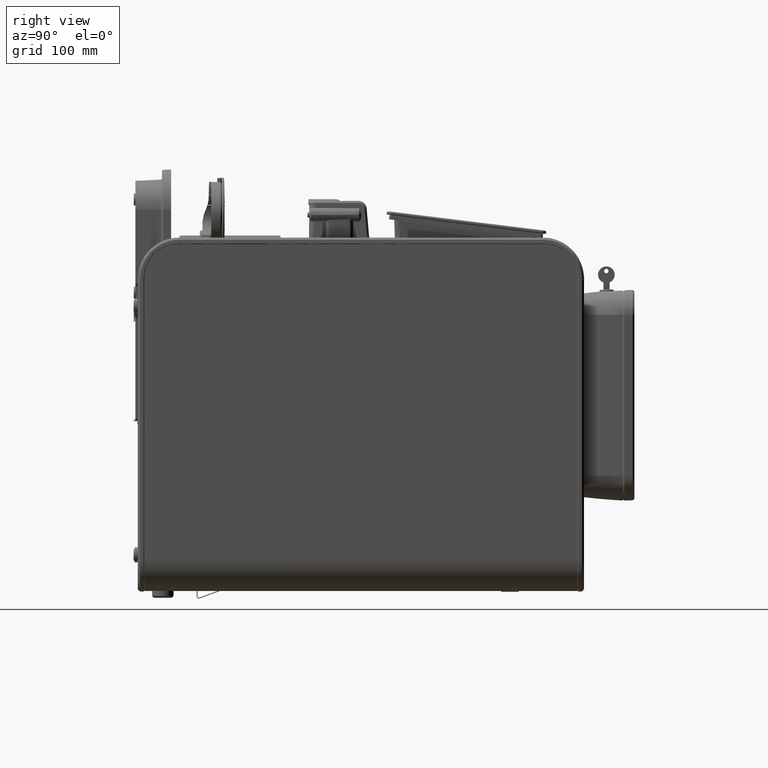
[diagram: clean part render]
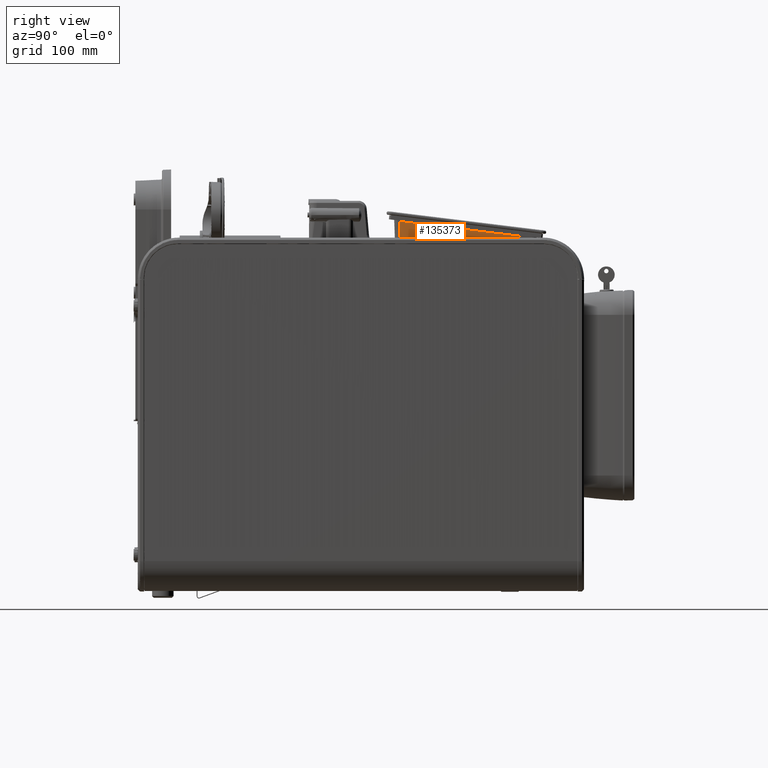
[diagram: same view with one face highlighted and labeled with its STEP entity id]
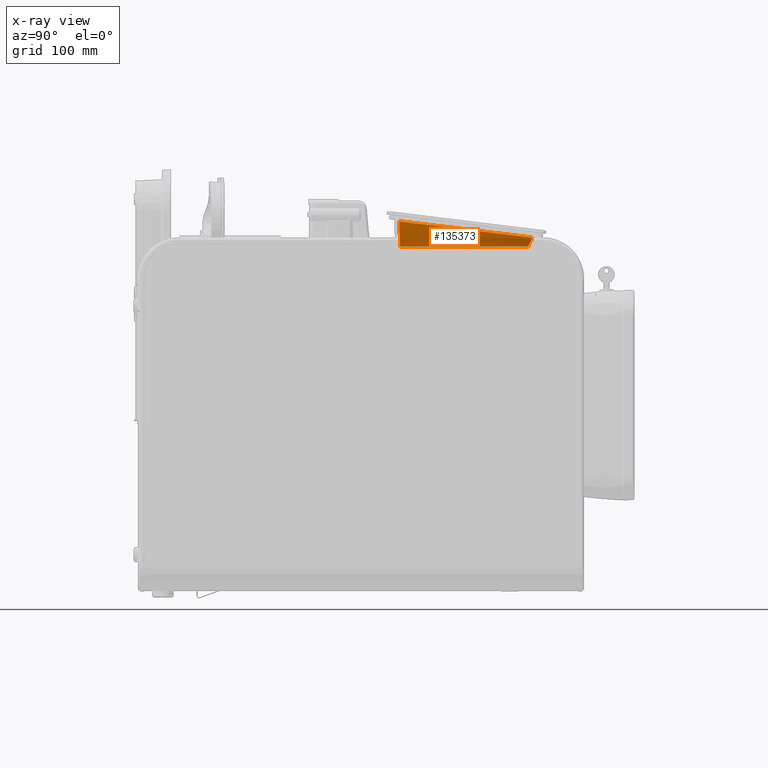
[diagram: x-ray of the same camera — body ghosted, the highlighted face saturated]
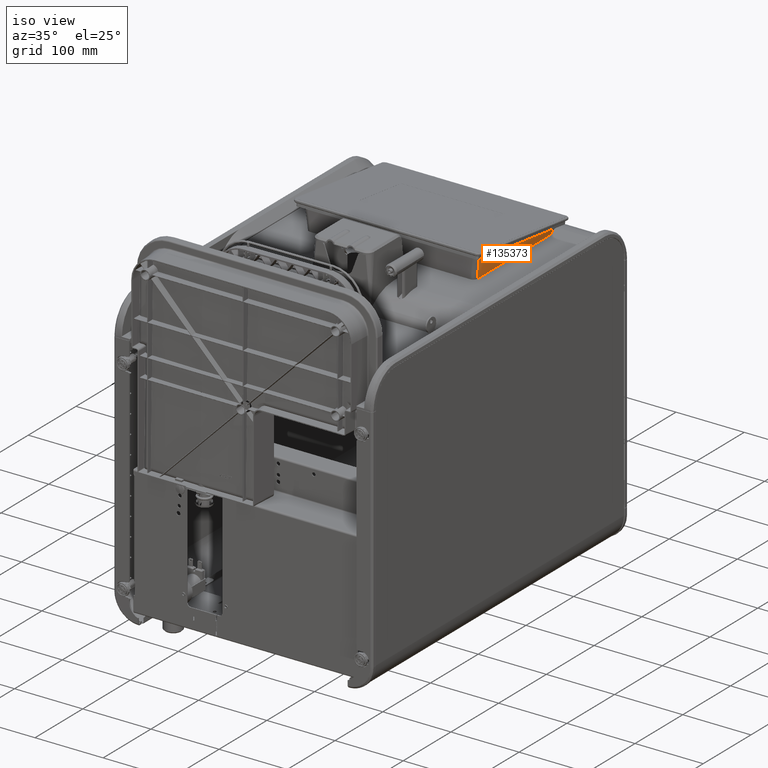
[diagram: same view with one face highlighted and labeled with its STEP entity id]
A machine part, right view. The second image highlights one B-rep face of the part: STEP entity #135373.
The next image is the same camera in x-ray: the body ghosted, the highlighted face saturated — about 0% of this face is hidden behind the body in this view.
A second angle (iso view) of the same face is appended — the face is thin or edge-on in the first view.
In plain terms, the highlighted face is a freeform B-spline surface patch.
Its self-contained STEP definition (entity closure, byte-faithful):
#1879=B_SPLINE_SURFACE_WITH_KNOTS('',3,3,((#337310,#337311,#337312,#337313,
#337314,#337315,#337316,#337317,#337318,#337319,#337320),(#337321,#337322,
#337323,#337324,#337325,#337326,#337327,#337328,#337329,#337330,#337331),
(#337332,#337333,#337334,#337335,#337336,#337337,#337338,#337339,#337340,
#337341,#337342),(#337343,#337344,#337345,#337346,#337347,#337348,#337349,
#337350,#337351,#337352,#337353),(#337354,#337355,#337356,#337357,#337358,
#337359,#337360,#337361,#337362,#337363,#337364),(#337365,#337366,#337367,
#337368,#337369,#337370,#337371,#337372,#337373,#337374,#337375),(#337376,
#337377,#337378,#337379,#337380,#337381,#337382,#337383,#337384,#337385,
#337386),(#337387,#337388,#337389,#337390,#337391,#337392,#337393,#337394,
#337395,#337396,#337397),(#337398,#337399,#337400,#337401,#337402,#337403,
#337404,#337405,#337406,#337407,#337408),(#337409,#337410,#337411,#337412,
#337413,#337414,#337415,#337416,#337417,#337418,#337419),(#337420,#337421,
#337422,#337423,#337424,#337425,#337426,#337427,#337428,#337429,#337430),
(#337431,#337432,#337433,#337434,#337435,#337436,#337437,#337438,#337439,
#337440,#337441),(#337442,#337443,#337444,#337445,#337446,#337447,#337448,
#337449,#337450,#337451,#337452),(#337453,#337454,#337455,#337456,#337457,
#337458,#337459,#337460,#337461,#337462,#337463),(#337464,#337465,#337466,
#337467,#337468,#337469,#337470,#337471,#337472,#337473,#337474),(#337475,
#337476,#337477,#337478,#337479,#337480,#337481,#337482,#337483,#337484,
#337485),(#337486,#337487,#337488,#337489,#337490,#337491,#337492,#337493,
#337494,#337495,#337496),(#337497,#337498,#337499,#337500,#337501,#337502,
#337503,#337504,#337505,#337506,#337507)),.UNSPECIFIED.,.F.,.F.,.F.,(4,
1,1,1,1,1,1,1,1,1,1,1,1,1,1,4),(4,1,1,1,1,1,1,1,4),(0.,0.0416666666666667,
0.0833333333333333,0.125,0.1875,0.25,0.3125,0.375,0.625,0.6875,0.75,0.8125,
0.875,0.916666666666667,0.958333333333333,1.),(0.,0.142857142857143,0.285714285714286,
0.428571428571429,0.571428571428571,0.714285714285714,0.857142857142857,
0.928571428571429,1.),.UNSPECIFIED.);
#7412=B_SPLINE_CURVE_WITH_KNOTS('',5,(#336459,#336460,#336461,#336462,#336463,
#336464),.UNSPECIFIED.,.F.,.F.,(6,6),(0.,1.),.UNSPECIFIED.);
#7416=B_SPLINE_CURVE_WITH_KNOTS('',5,(#337189,#337190,#337191,#337192,#337193,
#337194),.UNSPECIFIED.,.F.,.F.,(6,6),(0.,1.),.UNSPECIFIED.);
#28588=FACE_OUTER_BOUND('',#35062,.T.);
#35062=EDGE_LOOP('',(#127299,#127300,#127301,#127302));
#45030=LINE('',#337508,#55055);
#45031=LINE('',#337509,#55056);
#55055=VECTOR('',#179043,10.);
#55056=VECTOR('',#179044,10.);
#70876=VERTEX_POINT('',#336456);
#70877=VERTEX_POINT('',#336458);
#70886=VERTEX_POINT('',#337073);
#70888=VERTEX_POINT('',#337188);
#92964=EDGE_CURVE('',#70877,#70876,#7412,.T.);
#92979=EDGE_CURVE('',#70886,#70888,#7416,.T.);
#92984=EDGE_CURVE('',#70886,#70877,#45030,.T.);
#92985=EDGE_CURVE('',#70888,#70876,#45031,.F.);
#127299=ORIENTED_EDGE('',*,*,#92984,.T.);
#127300=ORIENTED_EDGE('',*,*,#92964,.T.);
#127301=ORIENTED_EDGE('',*,*,#92985,.F.);
#127302=ORIENTED_EDGE('',*,*,#92979,.F.);
#135373=ADVANCED_FACE('',(#28588),#1879,.F.);
#179043=DIRECTION('',(-5.59521373915196E-10,-0.992546151641326,0.121869343405119));
#179044=DIRECTION('',(5.63724729990213E-10,1.,2.17603712826531E-14));
#336456=CARTESIAN_POINT('',(123.393660854385,307.750628222987,205.300000000007));
#336458=CARTESIAN_POINT('',(126.806011081875,306.62803147739,235.545003882888));
#336459=CARTESIAN_POINT('Ctrl Pts',(126.806011081875,306.62803147739,235.545003882888));
#336460=CARTESIAN_POINT('Ctrl Pts',(126.541975636829,306.893490016684,229.465003739481));
#336461=CARTESIAN_POINT('Ctrl Pts',(126.278425755512,307.094177549636,223.404077714303));
#336462=CARTESIAN_POINT('Ctrl Pts',(123.923740402338,307.281122625292,217.44081769439));
#336463=CARTESIAN_POINT('Ctrl Pts',(123.659116698102,307.485172378971,211.379938411378));
#336464=CARTESIAN_POINT('Ctrl Pts',(123.393660854385,307.750628222987,205.300000000007));
#337073=CARTESIAN_POINT('',(126.806011171865,466.261956533229,215.944422489704));
#337188=CARTESIAN_POINT('',(123.393660941255,461.849371449822,205.30000000001));
#337189=CARTESIAN_POINT('Ctrl Pts',(126.806011171865,466.261956533229,215.944422489704));
#337190=CARTESIAN_POINT('Ctrl Pts',(126.700711705357,466.157218555586,213.545528404392));
#337191=CARTESIAN_POINT('Ctrl Pts',(126.605147072259,464.881117642194,211.51342396));
#337192=CARTESIAN_POINT('Ctrl Pts',(123.587136601521,463.225517033304,209.731321144302));
#337193=CARTESIAN_POINT('Ctrl Pts',(123.498399988157,461.954110496606,207.698918572676));
#337194=CARTESIAN_POINT('Ctrl Pts',(123.393660941255,461.849371449822,205.30000000001));
#337310=CARTESIAN_POINT('Ctrl Pts',(126.806011081875,306.62803147739,235.545003882888));
#337311=CARTESIAN_POINT('Ctrl Pts',(126.743145499721,306.691235891507,234.097384801124));
#337312=CARTESIAN_POINT('Ctrl Pts',(126.609281272857,306.808859090642,231.20509973728));
#337313=CARTESIAN_POINT('Ctrl Pts',(126.166163639706,306.967381491455,226.882819257591));
#337314=CARTESIAN_POINT('Ctrl Pts',(125.486973883499,307.115669964335,222.574186181768));
#337315=CARTESIAN_POINT('Ctrl Pts',(124.714987019766,307.260862914313,218.27071811997));
#337316=CARTESIAN_POINT('Ctrl Pts',(124.035490807772,307.409822716412,213.962098366354));
#337317=CARTESIAN_POINT('Ctrl Pts',(123.665718716068,307.542764782736,210.360220023495));
#337318=CARTESIAN_POINT('Ctrl Pts',(123.489403178629,307.657909260284,207.470716174331));
#337319=CARTESIAN_POINT('Ctrl Pts',(123.425262740542,307.719026336795,206.023802191836));
#337320=CARTESIAN_POINT('Ctrl Pts',(123.393660854385,307.750628222987,205.300000000007));
#337321=CARTESIAN_POINT('Ctrl Pts',(126.806011081949,306.759150343035,235.528904510543));
#337322=CARTESIAN_POINT('Ctrl Pts',(126.743173839776,306.822910749598,234.081866253766));
#337323=CARTESIAN_POINT('Ctrl Pts',(126.609454259649,306.941334981977,231.190802333693));
#337324=CARTESIAN_POINT('Ctrl Pts',(126.166420531278,307.099874270604,226.870775425798));
#337325=CARTESIAN_POINT('Ctrl Pts',(125.487102627828,307.247263705599,222.564761406203));
#337326=CARTESIAN_POINT('Ctrl Pts',(124.71489387588,307.391223710926,218.264051738044));
#337327=CARTESIAN_POINT('Ctrl Pts',(124.035261078073,307.53929437162,213.958047755947));
#337328=CARTESIAN_POINT('Ctrl Pts',(123.665546743852,307.672262759712,210.358043692366));
#337329=CARTESIAN_POINT('Ctrl Pts',(123.489342411603,307.788014397508,207.469831825325));
#337330=CARTESIAN_POINT('Ctrl Pts',(123.425250061537,307.849613804793,206.023511793179));
#337331=CARTESIAN_POINT('Ctrl Pts',(123.393660854459,307.881493680816,205.300000000007));
#337332=CARTESIAN_POINT('Ctrl Pts',(126.806011082099,307.025268432,235.496229317841));
#337333=CARTESIAN_POINT('Ctrl Pts',(126.743231168058,307.0901384757,234.05036784482));
#337334=CARTESIAN_POINT('Ctrl Pts',(126.609750484298,307.2101511583,231.161804099672));
#337335=CARTESIAN_POINT('Ctrl Pts',(126.166844271322,307.368705552031,226.846349038476));
#337336=CARTESIAN_POINT('Ctrl Pts',(125.487313246529,307.514273057116,222.545641452363));
#337337=CARTESIAN_POINT('Ctrl Pts',(124.714741930273,307.655743241218,218.25051117202));
#337338=CARTESIAN_POINT('Ctrl Pts',(124.03488249928,307.80200967733,213.949812226012));
#337339=CARTESIAN_POINT('Ctrl Pts',(123.665255785783,307.935013699142,210.353613565842));
#337340=CARTESIAN_POINT('Ctrl Pts',(123.48923290338,308.051967540911,207.468034332452));
#337341=CARTESIAN_POINT('Ctrl Pts',(123.425224373158,308.114527207277,206.022923429158));
#337342=CARTESIAN_POINT('Ctrl Pts',(123.393660854609,308.14696188908,205.300000000007));
#337343=CARTESIAN_POINT('Ctrl Pts',(126.806011082655,308.01083148085,235.375217391646));
#337344=CARTESIAN_POINT('Ctrl Pts',(126.743457825566,308.076860201488,233.93440494867));
#337345=CARTESIAN_POINT('Ctrl Pts',(126.610229367239,308.197798073612,231.056222901512));
#337346=CARTESIAN_POINT('Ctrl Pts',(126.167283192122,308.353210554706,226.757952556316));
#337347=CARTESIAN_POINT('Ctrl Pts',(125.487470762809,308.492332665031,222.475688807715));
#337348=CARTESIAN_POINT('Ctrl Pts',(124.714545310813,308.626167998058,218.199485096527));
#337349=CARTESIAN_POINT('Ctrl Pts',(124.034421806398,308.766016484315,213.917208865293));
#337350=CARTESIAN_POINT('Ctrl Pts',(123.664781438669,308.89643390919,210.335312108557));
#337351=CARTESIAN_POINT('Ctrl Pts',(123.488948298788,309.013562118906,207.460393843323));
#337352=CARTESIAN_POINT('Ctrl Pts',(123.425114154457,309.076943044147,206.020398993448));
#337353=CARTESIAN_POINT('Ctrl Pts',(123.393660855152,309.109957046818,205.300000000007));
#337354=CARTESIAN_POINT('Ctrl Pts',(126.806011083964,310.332715794836,235.090125845686));
#337355=CARTESIAN_POINT('Ctrl Pts',(126.744000210637,310.39909690105,233.661692765722));
#337356=CARTESIAN_POINT('Ctrl Pts',(126.611780962521,310.518144113198,230.808974433024));
#337357=CARTESIAN_POINT('Ctrl Pts',(126.169042215562,310.663576469734,226.551306058372));
#337358=CARTESIAN_POINT('Ctrl Pts',(125.4881965731,310.78776818054,222.311555698149));
#337359=CARTESIAN_POINT('Ctrl Pts',(124.713761195554,310.904935789812,218.078550675452));
#337360=CARTESIAN_POINT('Ctrl Pts',(124.032625174429,311.029876725317,213.838789880895));
#337361=CARTESIAN_POINT('Ctrl Pts',(123.663182787329,311.152008528774,210.290722937909));
#337362=CARTESIAN_POINT('Ctrl Pts',(123.488147063709,311.266067447915,207.441657444699));
#337363=CARTESIAN_POINT('Ctrl Pts',(123.424843915673,311.329164691575,206.014209478623));
#337364=CARTESIAN_POINT('Ctrl Pts',(123.393660856421,311.362354869627,205.300000000007));
#337365=CARTESIAN_POINT('Ctrl Pts',(126.806011086683,315.155978311688,234.497903675435));
#337366=CARTESIAN_POINT('Ctrl Pts',(126.745138552073,315.220898237541,233.095722248979));
#337367=CARTESIAN_POINT('Ctrl Pts',(126.6151460469,315.332346091878,230.296668958875));
#337368=CARTESIAN_POINT('Ctrl Pts',(126.172917612007,315.454659136305,226.123534329175));
#337369=CARTESIAN_POINT('Ctrl Pts',(125.489796123418,315.548062966767,221.97121508395));
#337370=CARTESIAN_POINT('Ctrl Pts',(124.712003659998,315.631789110014,217.82670497292));
#337371=CARTESIAN_POINT('Ctrl Pts',(124.028637114091,315.725972548769,213.674350240738));
#337372=CARTESIAN_POINT('Ctrl Pts',(123.659679282355,315.828872843864,210.196706707541));
#337373=CARTESIAN_POINT('Ctrl Pts',(123.486421331622,315.933382542075,207.401995952343));
#337374=CARTESIAN_POINT('Ctrl Pts',(123.424270846676,315.993860782568,206.00108398045));
#337375=CARTESIAN_POINT('Ctrl Pts',(123.39366085905,316.026320356591,205.300000000007));
#337376=CARTESIAN_POINT('Ctrl Pts',(126.806011091656,323.978194731159,233.41467170618));
#337377=CARTESIAN_POINT('Ctrl Pts',(126.747226459022,324.038569060074,232.060869226235));
#337378=CARTESIAN_POINT('Ctrl Pts',(126.621267898447,324.132881690583,229.360831523337));
#337379=CARTESIAN_POINT('Ctrl Pts',(126.179929430928,324.210873766619,225.342417547972));
#337380=CARTESIAN_POINT('Ctrl Pts',(125.49266342601,324.248183812508,221.349254306452));
#337381=CARTESIAN_POINT('Ctrl Pts',(124.708781287936,324.271815505414,217.365453726298));
#337382=CARTESIAN_POINT('Ctrl Pts',(124.021365556008,324.309919863187,213.372264396514));
#337383=CARTESIAN_POINT('Ctrl Pts',(123.653277506188,324.375908396383,210.023554149637));
#337384=CARTESIAN_POINT('Ctrl Pts',(123.483254302774,324.460190456597,207.328876639944));
#337385=CARTESIAN_POINT('Ctrl Pts',(123.423214741784,324.514123329973,205.976895091595));
#337386=CARTESIAN_POINT('Ctrl Pts',(123.393660863852,324.544310099603,205.300000000007));
#337387=CARTESIAN_POINT('Ctrl Pts',(126.806011098512,336.139940030971,231.92139714973));
#337388=CARTESIAN_POINT('Ctrl Pts',(126.750112561058,336.192900819451,230.63460738555));
#337389=CARTESIAN_POINT('Ctrl Pts',(126.629756118127,336.26168483382,228.071414102145));
#337390=CARTESIAN_POINT('Ctrl Pts',(126.189663759674,336.277310201839,224.266445271763));
#337391=CARTESIAN_POINT('Ctrl Pts',(125.496637503,336.237438719766,220.49219585478));
#337392=CARTESIAN_POINT('Ctrl Pts',(124.704287247917,336.178881164348,216.729273488653));
#337393=CARTESIAN_POINT('Ctrl Pts',(124.011247826501,336.139826170815,212.954959345631));
#337394=CARTESIAN_POINT('Ctrl Pts',(123.644382205232,336.153863213123,209.784092068817));
#337395=CARTESIAN_POINT('Ctrl Pts',(123.478861151298,336.208597511819,207.227659197688));
#337396=CARTESIAN_POINT('Ctrl Pts',(123.421751863972,336.252446942049,205.943389529603));
#337397=CARTESIAN_POINT('Ctrl Pts',(123.393660870467,336.278926945866,205.300000000007));
#337398=CARTESIAN_POINT('Ctrl Pts',(126.806011115436,366.162335387738,228.235110518597));
#337399=CARTESIAN_POINT('Ctrl Pts',(126.757235506218,366.195617518806,227.1138788683));
#337400=CARTESIAN_POINT('Ctrl Pts',(126.650673625524,366.198812556847,224.889446514171));
#337401=CARTESIAN_POINT('Ctrl Pts',(126.213625206713,366.058960186955,221.611410392387));
#337402=CARTESIAN_POINT('Ctrl Pts',(125.506401860807,365.828820967367,218.376953663507));
#337403=CARTESIAN_POINT('Ctrl Pts',(124.693195531917,365.568354465124,215.158234767302));
#337404=CARTESIAN_POINT('Ctrl Pts',(123.986302578163,365.339022077423,211.923769391431));
#337405=CARTESIAN_POINT('Ctrl Pts',(123.622442292508,365.22349675313,209.192038370663));
#337406=CARTESIAN_POINT('Ctrl Pts',(123.468016220775,365.203145655104,206.977443531846));
#337407=CARTESIAN_POINT('Ctrl Pts',(123.418137753696,365.220768895518,205.860612421146));
#337408=CARTESIAN_POINT('Ctrl Pts',(123.393660886792,365.237409598026,205.300000000008));
#337409=CARTESIAN_POINT('Ctrl Pts',(126.806011138312,406.743164631671,223.252411218806));
#337410=CARTESIAN_POINT('Ctrl Pts',(126.766880047937,406.74772207355,222.355602315648));
#337411=CARTESIAN_POINT('Ctrl Pts',(126.67905222028,406.658529299454,220.58984363887));
#337412=CARTESIAN_POINT('Ctrl Pts',(126.246159135801,406.306011236796,218.024619182502));
#337413=CARTESIAN_POINT('Ctrl Pts',(125.5196437097,405.819279858504,215.5186444128));
#337414=CARTESIAN_POINT('Ctrl Pts',(124.67808885801,405.287614548327,213.033889747041));
#337415=CARTESIAN_POINT('Ctrl Pts',(123.952382608149,404.801698843021,210.527828203095));
#337416=CARTESIAN_POINT('Ctrl Pts',(123.592637266062,404.508945655301,208.39005813626));
#337417=CARTESIAN_POINT('Ctrl Pts',(123.453300837608,404.383833151701,206.638360228283));
#337418=CARTESIAN_POINT('Ctrl Pts',(123.413238635195,404.363985782893,205.748403654212));
#337419=CARTESIAN_POINT('Ctrl Pts',(123.39366090885,404.366264210116,205.300000000009));
#337420=CARTESIAN_POINT('Ctrl Pts',(126.806011155233,436.758529513023,219.56698782151));
#337421=CARTESIAN_POINT('Ctrl Pts',(126.773996657661,436.743488385563,218.835582093406));
#337422=CARTESIAN_POINT('Ctrl Pts',(126.699988861235,436.587713452068,217.409607414049));
#337423=CARTESIAN_POINT('Ctrl Pts',(126.270160362044,436.079187543354,215.372112001532));
#337424=CARTESIAN_POINT('Ctrl Pts',(125.529417268543,435.403620980932,213.404812346667));
#337425=CARTESIAN_POINT('Ctrl Pts',(124.666956867552,434.672345850416,211.462285911708));
#337426=CARTESIAN_POINT('Ctrl Pts',(123.927377367009,433.99758275918,209.494961572836));
#337427=CARTESIAN_POINT('Ctrl Pts',(123.570666180036,433.574822702563,207.796999979605));
#337428=CARTESIAN_POINT('Ctrl Pts',(123.442454188842,433.373812327057,206.388024469872));
#337429=CARTESIAN_POINT('Ctrl Pts',(123.409627905467,433.327513605708,205.665703973119));
#337430=CARTESIAN_POINT('Ctrl Pts',(123.393660925172,433.319992813157,205.300000000009));
#337431=CARTESIAN_POINT('Ctrl Pts',(126.806011162089,448.920563205586,218.073677854882));
#337432=CARTESIAN_POINT('Ctrl Pts',(126.776879711958,448.898157634938,217.40920900944));
#337433=CARTESIAN_POINT('Ctrl Pts',(126.708558045169,448.716181525214,216.120814229829));
#337434=CARTESIAN_POINT('Ctrl Pts',(126.28003590046,448.144910208102,214.297378817641));
#337435=CARTESIAN_POINT('Ctrl Pts',(125.533452690055,447.393085753128,212.548340653391));
#337436=CARTESIAN_POINT('Ctrl Pts',(124.662383501789,446.581120670665,210.825471407477));
#337437=CARTESIAN_POINT('Ctrl Pts',(123.917105977283,445.830121469091,209.076373932109));
#337438=CARTESIAN_POINT('Ctrl Pts',(123.561675726835,445.3550930798,207.556773864707));
#337439=CARTESIAN_POINT('Ctrl Pts',(123.438041172978,445.123981567955,206.286686265772));
#337440=CARTESIAN_POINT('Ctrl Pts',(123.40816668192,445.067444620178,205.632236300004));
#337441=CARTESIAN_POINT('Ctrl Pts',(123.393660931788,445.056241635409,205.300000000009));
#337442=CARTESIAN_POINT('Ctrl Pts',(126.806011167061,457.740229813716,216.990758963094));
#337443=CARTESIAN_POINT('Ctrl Pts',(126.778962950492,457.713342759175,216.37455426784));
#337444=CARTESIAN_POINT('Ctrl Pts',(126.71455391926,457.513400995646,215.186072443947));
#337445=CARTESIAN_POINT('Ctrl Pts',(126.286835281088,456.897356307547,213.518073248661));
#337446=CARTESIAN_POINT('Ctrl Pts',(125.536209382429,456.090602216555,211.927321214806));
#337447=CARTESIAN_POINT('Ctrl Pts',(124.659240703031,455.220421838296,210.363575422395));
#337448=CARTESIAN_POINT('Ctrl Pts',(123.910027082538,454.414503379927,208.772782278671));
#337449=CARTESIAN_POINT('Ctrl Pts',(123.555404563734,453.902181684907,207.382721420546));
#337450=CARTESIAN_POINT('Ctrl Pts',(123.434909449859,453.650161609751,206.213442047872));
#337451=CARTESIAN_POINT('Ctrl Pts',(123.407113081576,453.586889732123,205.608104774733));
#337452=CARTESIAN_POINT('Ctrl Pts',(123.393660936589,453.573446030457,205.30000000001));
#337453=CARTESIAN_POINT('Ctrl Pts',(126.806011169779,462.562065649121,216.398711967298));
#337454=CARTESIAN_POINT('Ctrl Pts',(126.780097011179,462.533780998205,215.808653073161));
#337455=CARTESIAN_POINT('Ctrl Pts',(126.718283243661,462.325392448607,214.674733790535));
#337456=CARTESIAN_POINT('Ctrl Pts',(126.291341455109,461.68575689677,213.092005466059));
#337457=CARTESIAN_POINT('Ctrl Pts',(125.538104168643,460.849392212182,211.587838493005));
#337458=CARTESIAN_POINT('Ctrl Pts',(124.657174697489,459.947677319134,210.111031179674));
#337459=CARTESIAN_POINT('Ctrl Pts',(123.905398052905,459.112180151018,208.606803465305));
#337460=CARTESIAN_POINT('Ctrl Pts',(123.551491845775,458.580235294241,207.287788053852));
#337461=CARTESIAN_POINT('Ctrl Pts',(123.433090282405,458.317971576248,206.173646094725));
#337462=CARTESIAN_POINT('Ctrl Pts',(123.406542321855,458.251886896352,205.595032167673));
#337463=CARTESIAN_POINT('Ctrl Pts',(123.393660939219,458.237744414197,205.30000000001));
#337464=CARTESIAN_POINT('Ctrl Pts',(126.806011171087,464.882158678908,216.113840363381));
#337465=CARTESIAN_POINT('Ctrl Pts',(126.78063509525,464.854287493863,215.536054823462));
#337466=CARTESIAN_POINT('Ctrl Pts',(126.71913315923,464.643210377369,214.428495461647));
#337467=CARTESIAN_POINT('Ctrl Pts',(126.291890983286,463.993160001567,212.887089725053));
#337468=CARTESIAN_POINT('Ctrl Pts',(125.538241498502,463.142984040574,211.424586733473));
#337469=CARTESIAN_POINT('Ctrl Pts',(124.656931488472,462.226405577631,209.989420619423));
#337470=CARTESIAN_POINT('Ctrl Pts',(123.90477931516,461.37711113259,208.526866369831));
#337471=CARTESIAN_POINT('Ctrl Pts',(123.550662238678,460.836507806599,207.242289954773));
#337472=CARTESIAN_POINT('Ctrl Pts',(123.4324752831,460.570516500531,206.154776418088));
#337473=CARTESIAN_POINT('Ctrl Pts',(123.40627439584,460.50396482275,205.588895623972));
#337474=CARTESIAN_POINT('Ctrl Pts',(123.393660940488,460.490029085981,205.30000000001));
#337475=CARTESIAN_POINT('Ctrl Pts',(126.806011171642,465.866264979349,215.9930073034));
#337476=CARTESIAN_POINT('Ctrl Pts',(126.780858056267,465.839606381653,215.420179510611));
#337477=CARTESIAN_POINT('Ctrl Pts',(126.71631354032,465.628760345082,214.32391398829));
#337478=CARTESIAN_POINT('Ctrl Pts',(126.28661356881,464.97520263853,212.800424681541));
#337479=CARTESIAN_POINT('Ctrl Pts',(125.535654440352,464.119581988215,211.35550583135));
#337480=CARTESIAN_POINT('Ctrl Pts',(124.659364608976,463.196961981325,209.937692600752));
#337481=CARTESIAN_POINT('Ctrl Pts',(123.909947931945,462.342219936033,208.49270540455));
#337482=CARTESIAN_POINT('Ctrl Pts',(123.553844717161,461.798687237346,207.223045992131));
#337483=CARTESIAN_POINT('Ctrl Pts',(123.433059142291,461.532281930151,206.146983823241));
#337484=CARTESIAN_POINT('Ctrl Pts',(123.406166168597,461.466388277488,205.586416800126));
#337485=CARTESIAN_POINT('Ctrl Pts',(123.393660941031,461.453058843381,205.30000000001));
#337486=CARTESIAN_POINT('Ctrl Pts',(126.806011171791,466.13134549829,215.960459508278));
#337487=CARTESIAN_POINT('Ctrl Pts',(126.780912794077,466.105833525848,215.388744626143));
#337488=CARTESIAN_POINT('Ctrl Pts',(126.718881344151,465.896076774182,214.29540548282));
#337489=CARTESIAN_POINT('Ctrl Pts',(126.290971763314,465.242247285762,212.776840137791));
#337490=CARTESIAN_POINT('Ctrl Pts',(125.537746886666,464.385478151991,211.336819341893));
#337491=CARTESIAN_POINT('Ctrl Pts',(124.657384197936,463.461474319237,209.923833505898));
#337492=CARTESIAN_POINT('Ctrl Pts',(123.905673718426,462.60561970369,208.483748391212));
#337493=CARTESIAN_POINT('Ctrl Pts',(123.551031272935,462.061906556605,207.218193924259));
#337494=CARTESIAN_POINT('Ctrl Pts',(123.432354421927,461.796306668286,206.145135867867));
#337495=CARTESIAN_POINT('Ctrl Pts',(123.406141873717,461.731262108148,205.585860352474));
#337496=CARTESIAN_POINT('Ctrl Pts',(123.393660941181,461.718505991993,205.30000000001));
#337497=CARTESIAN_POINT('Ctrl Pts',(126.806011171865,466.261956533228,215.944422489704));
#337498=CARTESIAN_POINT('Ctrl Pts',(126.780939870315,466.237018919504,215.373257231296));
#337499=CARTESIAN_POINT('Ctrl Pts',(126.720641187744,466.027811926928,214.281331318477));
#337500=CARTESIAN_POINT('Ctrl Pts',(126.29398381952,465.373852008816,212.765181337094));
#337501=CARTESIAN_POINT('Ctrl Pts',(125.539191628539,464.516519307942,211.327593833214));
#337502=CARTESIAN_POINT('Ctrl Pts',(124.656009794068,463.591836641339,209.917023874857));
#337503=CARTESIAN_POINT('Ctrl Pts',(123.902718786504,462.735441539864,208.479370824035));
#337504=CARTESIAN_POINT('Ctrl Pts',(123.549092503533,462.191648431665,207.21582860424));
#337505=CARTESIAN_POINT('Ctrl Pts',(123.431877132017,461.926458102764,206.14423099913));
#337506=CARTESIAN_POINT('Ctrl Pts',(123.40612987541,461.861840383963,205.585585544375));
#337507=CARTESIAN_POINT('Ctrl Pts',(123.393660941255,461.849371449822,205.30000000001));
#337508=CARTESIAN_POINT('',(126.806011102056,342.427668037988,231.149361227312));
#337509=CARTESIAN_POINT('',(123.393660921215,426.299999836405,205.300000000009));